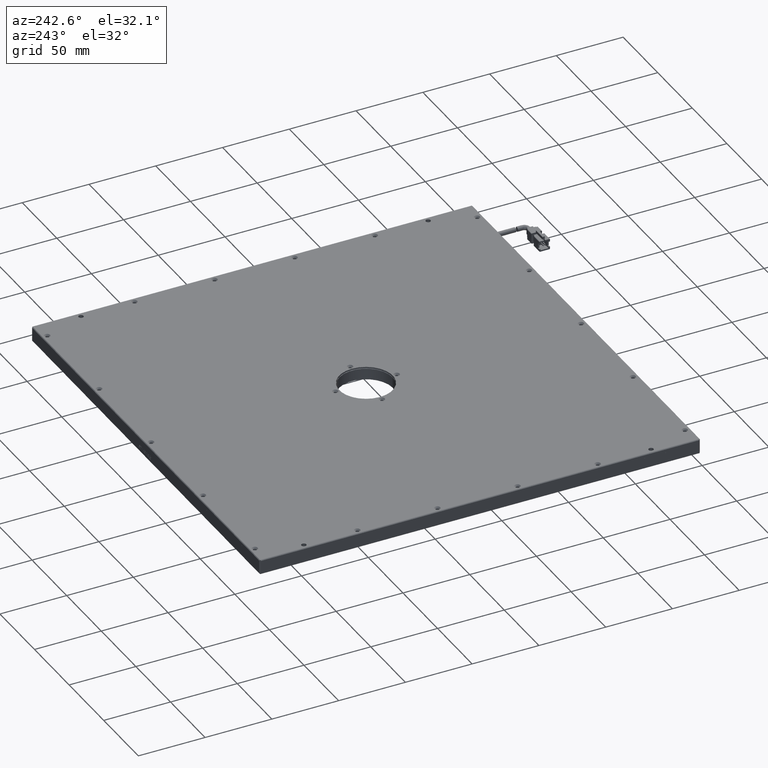
[diagram: clean part render]
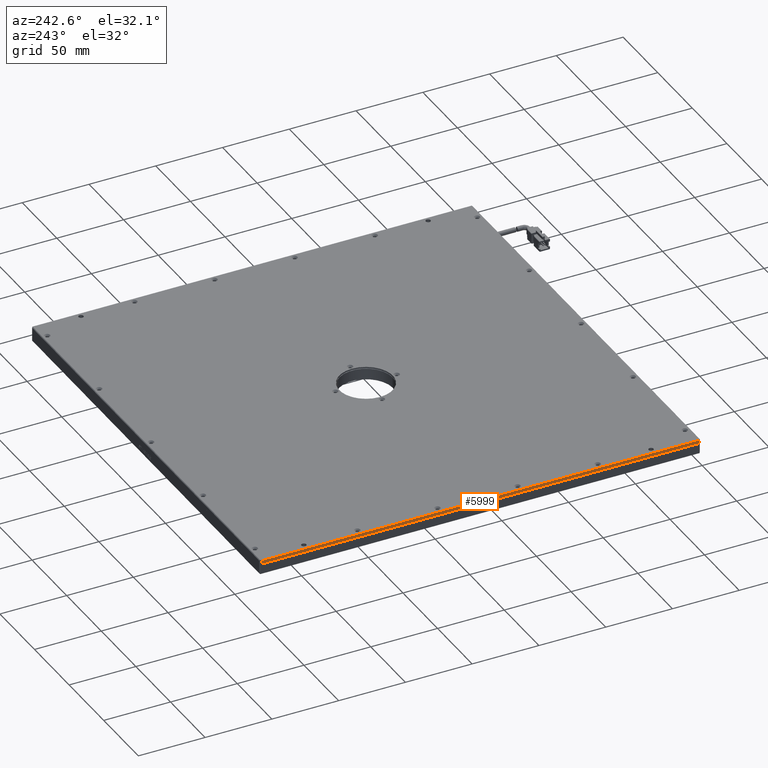
[diagram: same view with one face highlighted and labeled with its STEP entity id]
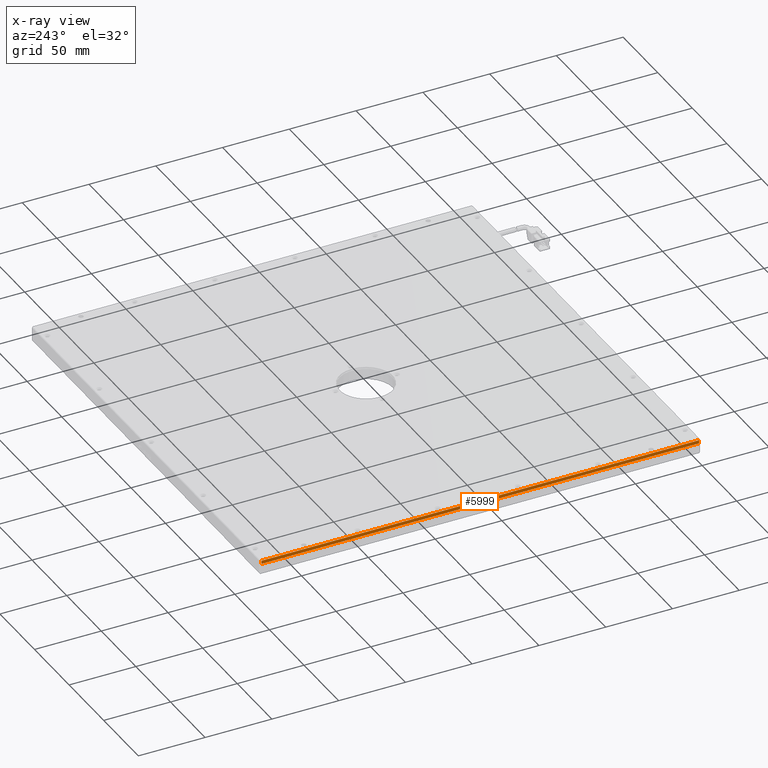
[diagram: x-ray of the same camera — body ghosted, the highlighted face saturated]
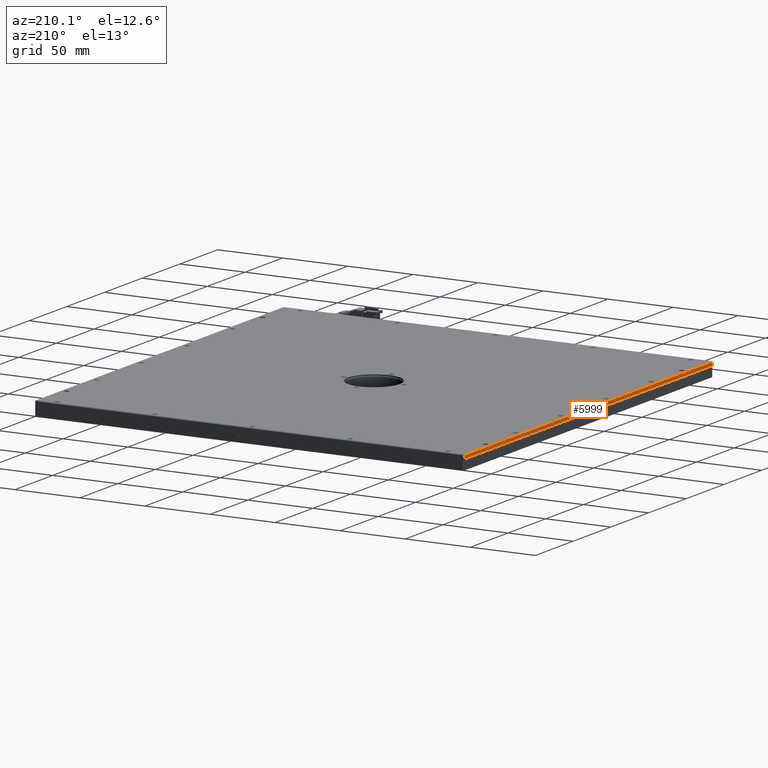
[diagram: same view with one face highlighted and labeled with its STEP entity id]
A machine part, auxiliary view. The second image highlights one B-rep face of the part: STEP entity #5999.
The next image is the same camera in x-ray: the body ghosted, the highlighted face saturated — about 0% of this face is hidden behind the body in this view.
A second angle (auxiliary view) of the same face is appended — the face is thin or edge-on in the first view.
In plain terms, the highlighted planar face has unit normal (1, 0, 0).
Its self-contained STEP definition (entity closure, byte-faithful):
#126 = DIRECTION ( 'NONE',  ( 0.0000000000000000000, -1.000000000000000000, -0.0000000000000000000 ) ) ;
#2846 = FACE_OUTER_BOUND ( 'NONE', #20428, .T. ) ;
#4056 = VERTEX_POINT ( 'NONE', #15624 ) ;
#4361 = VERTEX_POINT ( 'NONE', #11466 ) ;
#4531 = LINE ( 'NONE', #27157, #31340 ) ;
#5054 = CARTESIAN_POINT ( 'NONE',  ( -196.2439076390645000, 228.3065740479060000, 10.50000000001898700 ) ) ;
#5317 = EDGE_CURVE ( 'NONE', #31771, #4056, #18643, .T. ) ;
#5354 = VECTOR ( 'NONE', #126, 1000.000000000000000 ) ;
#5648 = EDGE_CURVE ( 'NONE', #4056, #4361, #21031, .T. ) ;
#5999 = ADVANCED_FACE ( 'NONE', ( #2846 ), #15253, .F. ) ;
#6735 = VECTOR ( 'NONE', #10549, 1000.000000000000000 ) ;
#7615 = DIRECTION ( 'NONE',  ( 1.000000000000000000, 0.0000000000000000000, 0.0000000000000000000 ) ) ;
#8419 = ORIENTED_EDGE ( 'NONE', *, *, #5317, .F. ) ;
#8522 = EDGE_CURVE ( 'NONE', #15064, #31771, #9545, .T. ) ;
#9086 = AXIS2_PLACEMENT_3D ( 'NONE', #33129, #7615, #25782 ) ;
#9391 = VECTOR ( 'NONE', #15392, 1000.000000000000000 ) ;
#9545 = LINE ( 'NONE', #10654, #6735 ) ;
#10549 = DIRECTION ( 'NONE',  ( -0.0000000000000000000, -0.0000000000000000000, 1.000000000000000000 ) ) ;
#10654 = CARTESIAN_POINT ( 'NONE',  ( -196.2439076390645000, 228.3065740479058800, 11.00000000001909900 ) ) ;
#11466 = CARTESIAN_POINT ( 'NONE',  ( -196.2439076390645600, -99.69342595209398900, 8.000000000019097600 ) ) ;
#14595 = ORIENTED_EDGE ( 'NONE', *, *, #5648, .F. ) ;
#15064 = VERTEX_POINT ( 'NONE', #28666 ) ;
#15253 = PLANE ( 'NONE',  #9086 ) ;
#15392 = DIRECTION ( 'NONE',  ( 0.0000000000000000000, 0.0000000000000000000, -1.000000000000000000 ) ) ;
#15624 = CARTESIAN_POINT ( 'NONE',  ( -196.2439076390644500, -99.69342595209411700, 10.50000000001900200 ) ) ;
#17370 = ORIENTED_EDGE ( 'NONE', *, *, #8522, .F. ) ;
#18272 = ORIENTED_EDGE ( 'NONE', *, *, #28529, .T. ) ;
#18643 = LINE ( 'NONE', #30751, #5354 ) ;
#19677 = DIRECTION ( 'NONE',  ( -0.0000000000000000000, -1.000000000000000000, -0.0000000000000000000 ) ) ;
#20428 = EDGE_LOOP ( 'NONE', ( #8419, #17370, #18272, #14595 ) ) ;
#21031 = LINE ( 'NONE', #30715, #9391 ) ;
#25782 = DIRECTION ( 'NONE',  ( 0.0000000000000000000, 0.0000000000000000000, -1.000000000000000000 ) ) ;
#27157 = CARTESIAN_POINT ( 'NONE',  ( -196.2439076390645600, 229.3065740479060500, 8.000000000019099400 ) ) ;
#28529 = EDGE_CURVE ( 'NONE', #15064, #4361, #4531, .T. ) ;
#28666 = CARTESIAN_POINT ( 'NONE',  ( -196.2439076390645600, 228.3065740479059400, 8.000000000019097600 ) ) ;
#30715 = CARTESIAN_POINT ( 'NONE',  ( -196.2439076390645000, -99.69342595209400300, 11.00000000001909900 ) ) ;
#30751 = CARTESIAN_POINT ( 'NONE',  ( -196.2439076390645000, -100.6934259520940000, 10.50000000001898700 ) ) ;
#31340 = VECTOR ( 'NONE', #19677, 1000.000000000000000 ) ;
#31771 = VERTEX_POINT ( 'NONE', #5054 ) ;
#33129 = CARTESIAN_POINT ( 'NONE',  ( -196.2439076390645000, -100.6934259520940000, 11.00000000001909900 ) ) ;